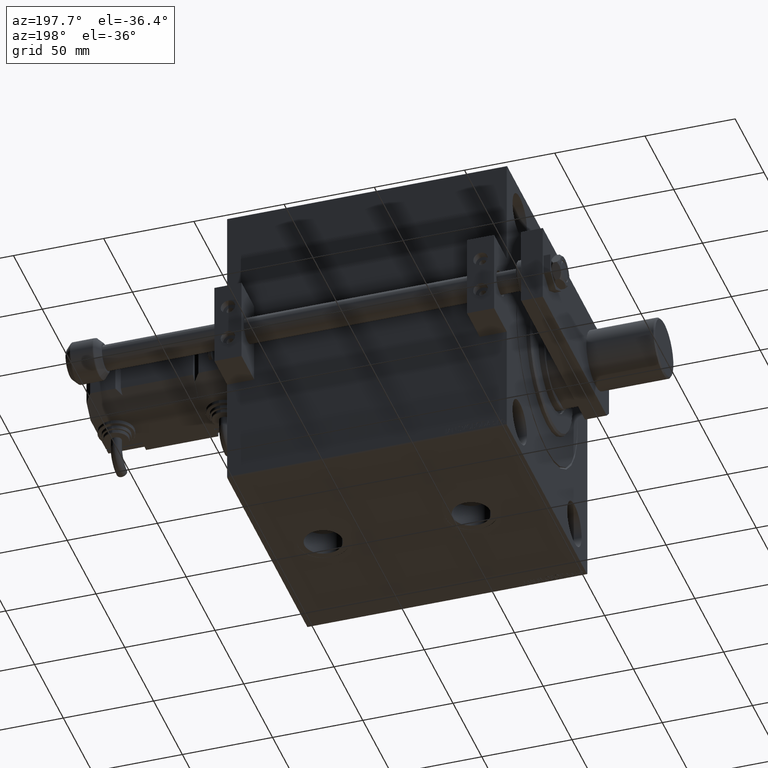
[diagram: clean part render]
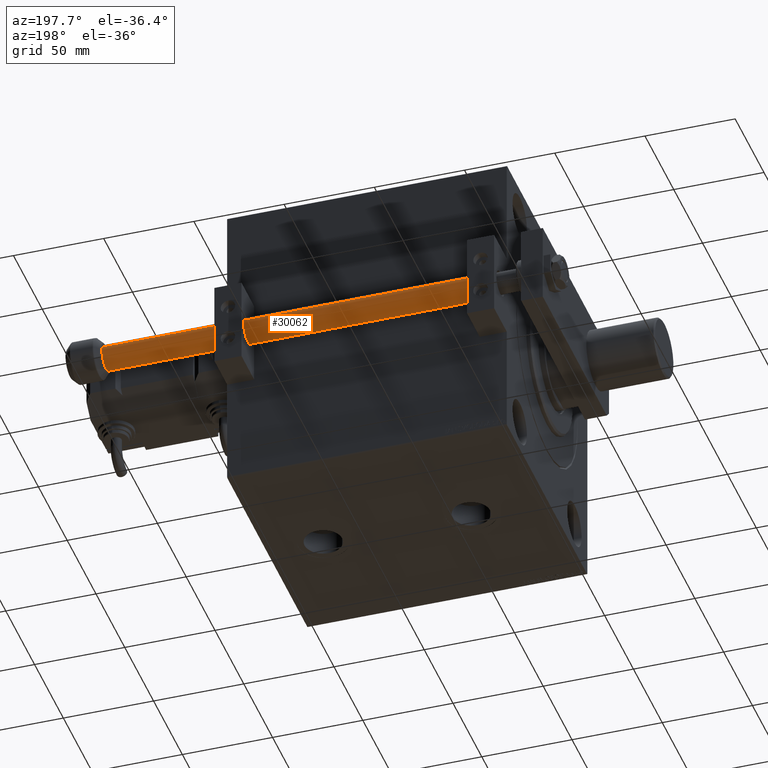
[diagram: same view with one face highlighted and labeled with its STEP entity id]
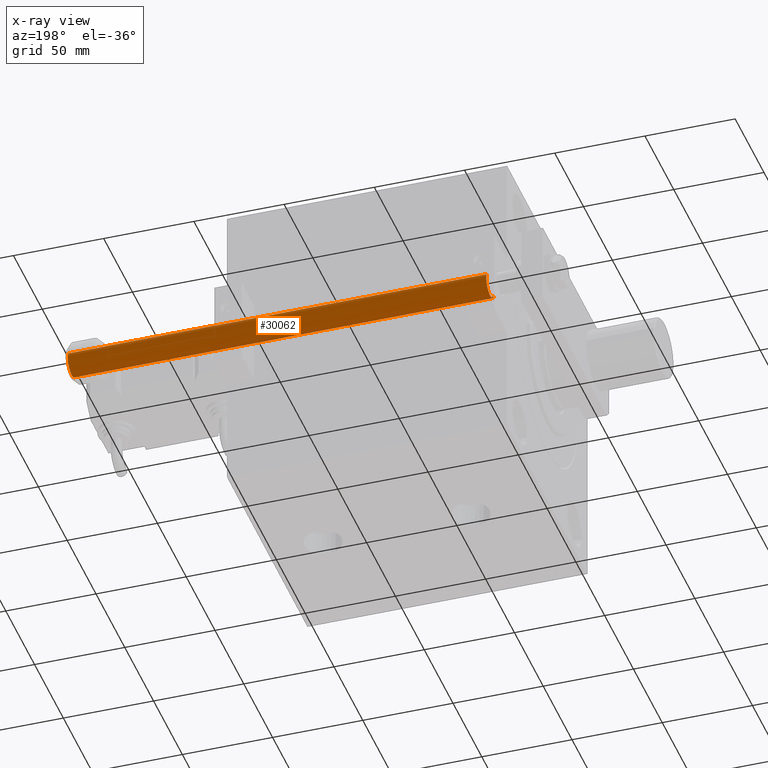
[diagram: x-ray of the same camera — body ghosted, the highlighted face saturated]
A machine part, auxiliary view. The second image highlights one B-rep face of the part: STEP entity #30062.
The next image is the same camera in x-ray: the body ghosted, the highlighted face saturated — about 0% of this face is hidden behind the body in this view.
In plain terms, the highlighted cylindrical surface (edge-blend (fillet) strip) has radius 7 mm, axis along (-1, 0, 0).
Its self-contained STEP definition (entity closure, byte-faithful):
#1723 = CIRCLE ( 'NONE', #7551, 7.000000000000000000 ) ;
#2030 = EDGE_CURVE ( 'NONE', #48870, #17161, #46473, .T. ) ;
#5952 = ORIENTED_EDGE ( 'NONE', *, *, #2030, .T. ) ;
#6316 = CARTESIAN_POINT ( 'NONE',  ( -7.000000000000000000, 0.000000000000000000, 235.0000000000000000 ) ) ;
#6578 = CARTESIAN_POINT ( 'NONE',  ( 0.000000000000000000, 0.000000000000000000, 234.0000000000001421 ) ) ;
#7112 = EDGE_CURVE ( 'NONE', #16654, #48870, #14079, .T. ) ;
#7434 = AXIS2_PLACEMENT_3D ( 'NONE', #33861, #10680, #14839 ) ;
#7551 = AXIS2_PLACEMENT_3D ( 'NONE', #6578, #50081, #46683 ) ;
#8340 = CIRCLE ( 'NONE', #20808, 7.000000000000000000 ) ;
#8344 = VECTOR ( 'NONE', #30262, 1000.000000000000000 ) ;
#9290 = EDGE_CURVE ( 'NONE', #16654, #34467, #14890, .T. ) ;
#10153 = EDGE_CURVE ( 'NONE', #17161, #23773, #1723, .T. ) ;
#10680 = DIRECTION ( 'NONE',  ( -0.000000000000000000, -0.000000000000000000, -1.000000000000000000 ) ) ;
#11701 = EDGE_CURVE ( 'NONE', #23773, #17282, #44837, .T. ) ;
#12827 = DIRECTION ( 'NONE',  ( 1.000000000000000000, 0.000000000000000000, 0.000000000000000000 ) ) ;
#13722 = ORIENTED_EDGE ( 'NONE', *, *, #31896, .T. ) ;
#14079 = CIRCLE ( 'NONE', #21551, 7.000000000000000000 ) ;
#14839 = DIRECTION ( 'NONE',  ( -1.000000000000000000, 0.000000000000000000, 0.000000000000000000 ) ) ;
#14890 = LINE ( 'NONE', #6316, #8344 ) ;
#15944 = CARTESIAN_POINT ( 'NONE',  ( -7.000000000000000000, 0.000000000000000000, 234.0000000000001421 ) ) ;
#16654 = VERTEX_POINT ( 'NONE', #15944 ) ;
#17161 = VERTEX_POINT ( 'NONE', #18844 ) ;
#17282 = VERTEX_POINT ( 'NONE', #48505 ) ;
#18844 = CARTESIAN_POINT ( 'NONE',  ( 0.4999999999999882871, 6.982120021884472116, 234.0000000000001421 ) ) ;
#20808 = AXIS2_PLACEMENT_3D ( 'NONE', #34840, #22108, #23118 ) ;
#21551 = AXIS2_PLACEMENT_3D ( 'NONE', #36264, #32611, #12827 ) ;
#22108 = DIRECTION ( 'NONE',  ( -0.000000000000000000, -0.000000000000000000, 1.000000000000000000 ) ) ;
#22373 = AXIS2_PLACEMENT_3D ( 'NONE', #37243, #40201, #48276 ) ;
#22595 = VECTOR ( 'NONE', #44590, 1000.000000000000000 ) ;
#23050 = ORIENTED_EDGE ( 'NONE', *, *, #7112, .T. ) ;
#23118 = DIRECTION ( 'NONE',  ( 1.000000000000000000, 0.000000000000000000, 0.000000000000000000 ) ) ;
#23773 = VERTEX_POINT ( 'NONE', #45570 ) ;
#25289 = CARTESIAN_POINT ( 'NONE',  ( 7.000000000000000000, 8.572527594031471218E-16, 235.0000000000000000 ) ) ;
#30062 = ADVANCED_FACE ( 'NONE', ( #42195 ), #34630, .T. ) ;
#30262 = DIRECTION ( 'NONE',  ( -0.000000000000000000, -0.000000000000000000, -1.000000000000000000 ) ) ;
#31896 = EDGE_CURVE ( 'NONE', #17282, #34467, #8340, .T. ) ;
#32611 = DIRECTION ( 'NONE',  ( 0.000000000000000000, 0.000000000000000000, -1.000000000000000000 ) ) ;
#33861 = CARTESIAN_POINT ( 'NONE',  ( 0.000000000000000000, 0.000000000000000000, 235.0000000000000000 ) ) ;
#34349 = ORIENTED_EDGE ( 'NONE', *, *, #10153, .T. ) ;
#34467 = VERTEX_POINT ( 'NONE', #48485 ) ;
#34630 = CYLINDRICAL_SURFACE ( 'NONE', #7434, 7.000000000000000000 ) ;
#34840 = CARTESIAN_POINT ( 'NONE',  ( 0.000000000000000000, 0.000000000000000000, 2.000000000000057288 ) ) ;
#36264 = CARTESIAN_POINT ( 'NONE',  ( 0.000000000000000000, 0.000000000000000000, 234.0000000000001421 ) ) ;
#37243 = CARTESIAN_POINT ( 'NONE',  ( 0.000000000000000000, 0.000000000000000000, 234.0000000000001421 ) ) ;
#40201 = DIRECTION ( 'NONE',  ( 0.000000000000000000, 0.000000000000000000, -1.000000000000000000 ) ) ;
#40523 = EDGE_LOOP ( 'NONE', ( #34349, #42926, #13722, #48166, #23050, #5952 ) ) ;
#42195 = FACE_OUTER_BOUND ( 'NONE', #40523, .T. ) ;
#42926 = ORIENTED_EDGE ( 'NONE', *, *, #11701, .T. ) ;
#44590 = DIRECTION ( 'NONE',  ( -0.000000000000000000, -0.000000000000000000, -1.000000000000000000 ) ) ;
#44837 = LINE ( 'NONE', #25289, #22595 ) ;
#45570 = CARTESIAN_POINT ( 'NONE',  ( 7.000000000000000000, 8.572527594031471218E-16, 234.0000000000001421 ) ) ;
#46473 = CIRCLE ( 'NONE', #22373, 7.000000000000000000 ) ;
#46683 = DIRECTION ( 'NONE',  ( 1.000000000000000000, -8.881784197001252323E-16, 0.000000000000000000 ) ) ;
#48027 = CARTESIAN_POINT ( 'NONE',  ( -0.4999999999999992784, 6.982120021884637318, 234.0000000000000000 ) ) ;
#48166 = ORIENTED_EDGE ( 'NONE', *, *, #9290, .F. ) ;
#48276 = DIRECTION ( 'NONE',  ( 1.000000000000000000, 0.000000000000000000, 0.000000000000000000 ) ) ;
#48485 = CARTESIAN_POINT ( 'NONE',  ( -7.000000000000000000, 0.000000000000000000, 2.000000000000057288 ) ) ;
#48505 = CARTESIAN_POINT ( 'NONE',  ( 7.000000000000000000, 8.572527594031471218E-16, 2.000000000000057288 ) ) ;
#48870 = VERTEX_POINT ( 'NONE', #48027 ) ;
#50081 = DIRECTION ( 'NONE',  ( 0.000000000000000000, 0.000000000000000000, -1.000000000000000000 ) ) ;